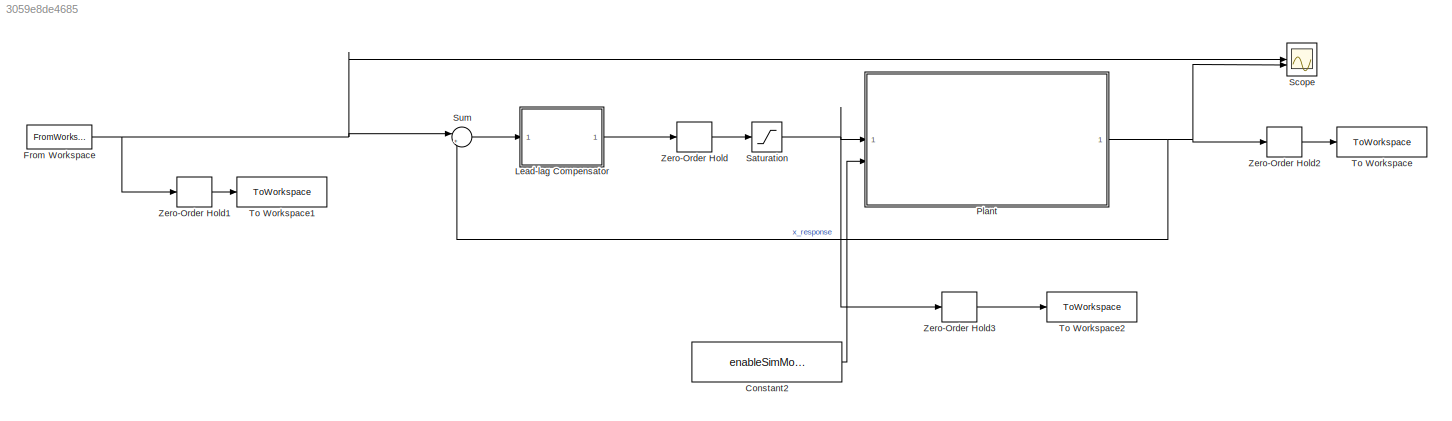
MODEL slx_3059e8de4685
KIND model
CONFIG AbsTol = auto
CONFIG EnableMultiTasking = off
CONFIG FixedStep = auto
CONFIG MaxStep = auto
CONFIG MinStep = auto
CONFIG RelTol = 1e-3
CONFIG SampleTimeConstraint = Unconstrained
CONFIG SolverName = VariableStepAuto
CONFIG StartTime = 0
CONFIG StopTime = 1.712
BLOCK [Constant] Constant2
  Value = enableSimModelFriction
BLOCK [FromWorkspace] From Workspace
  VariableName = xd
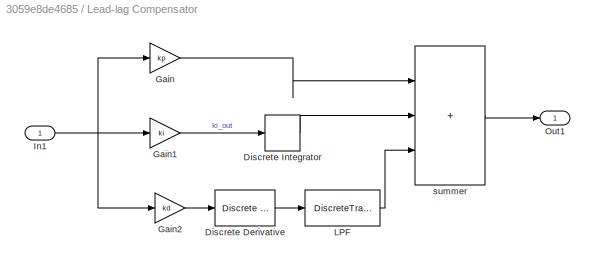
BLOCK [SubSystem] Lead-lag Compensator
BLOCK [Reference] Lead-lag Compensator/Discrete Derivative  REF=simulink/Discrete/Discrete Derivative
  SourceBlock = simulink/Discrete/Discrete Derivative
  SourceType = Discrete Derivative
BLOCK [DiscreteIntegrator] Lead-lag Compensator/Discrete Integrator
  ICPrevOutput = DiscIntNeverNeededParam
  ICPrevScaledInput = DiscIntNeverNeededParam
  InitialConditionSetting = Auto
  SampleTime = Ts
BLOCK [Gain] Lead-lag Compensator/Gain
  Gain = kp
BLOCK [Gain] Lead-lag Compensator/Gain1
  Gain = ki
BLOCK [Gain] Lead-lag Compensator/Gain2
  Gain = kd
BLOCK [Inport] Lead-lag Compensator/In1
BLOCK [DiscreteTransferFcn] Lead-lag Compensator/LPF
  Denominator = [1 -ad]
  InputPortMap = u0
  Numerator = [(1-ad) 0]
BLOCK [Outport] Lead-lag Compensator/Out1
BLOCK [Sum] Lead-lag Compensator/summer
  IconShape = rectangular
  Inputs = |+++
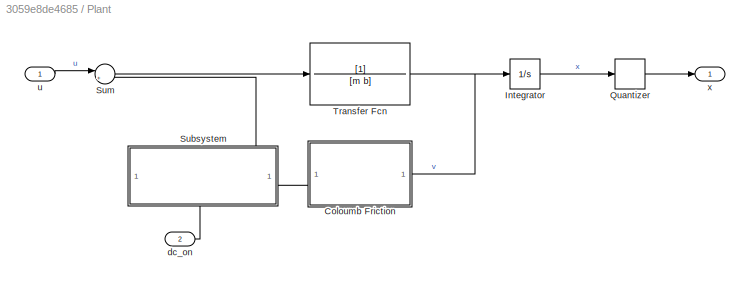
BLOCK [SubSystem] Plant
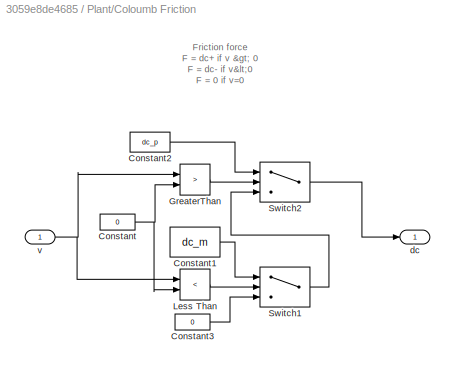
BLOCK [SubSystem] Plant/Coloumb Friction
  PortSchema = {"entries":[{"content":{"sides":[{"content":{"connectorIds":["Out1"]},"type":"ConnectorPlacement.EquallySpacedRectSide","uuid":"ff12b2c0-96a7-455e-a8b4-07c6e260c366"},{"content":{"connectorIds":["In1"],"side":"RIGHT"},"type":"ConnectorPlacement.EquallySpacedRectSide","uuid":"07b26d63-6ebc-42e8-853f-da6a99fdc545"},{"content":{"connectorIds":[],"side":"TOP"},"type":"ConnectorPlacement.EquallySpacedR...<+384ch>
BLOCK [Constant] Plant/Coloumb Friction/Constant
  Value = 0
BLOCK [Constant] Plant/Coloumb Friction/Constant1
  Value = dc_m
BLOCK [Constant] Plant/Coloumb Friction/Constant2
  Value = dc_p
BLOCK [Constant] Plant/Coloumb Friction/Constant3
  Value = 0
BLOCK [RelationalOperator] Plant/Coloumb Friction/GreaterThan
  InputSameDT = off
  Operator = >
  OutDataTypeStr = boolean
  RndMeth = Simplest
BLOCK [RelationalOperator] Plant/Coloumb Friction/Less Than
  InputSameDT = off
  Operator = <
  OutDataTypeStr = boolean
  RndMeth = Simplest
BLOCK [Switch] Plant/Coloumb Friction/Switch1
  Criteria = u2 > Threshold
  InputSameDT = off
  SaturateOnIntegerOverflow = off
BLOCK [Switch] Plant/Coloumb Friction/Switch2
  Criteria = u2 > Threshold
  InputSameDT = off
  SaturateOnIntegerOverflow = off
BLOCK [Outport] Plant/Coloumb Friction/dc
BLOCK [Inport] Plant/Coloumb Friction/v
BLOCK [Integrator] Plant/Integrator
BLOCK [Quantizer] Plant/Quantizer
  QuantizationInterval = delta_x
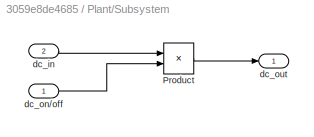
BLOCK [SubSystem] Plant/Subsystem
  PortSchema = {"entries":[{"content":{"sides":[{"content":{"connectorIds":["Out1"]},"type":"ConnectorPlacement.EquallySpacedRectSide","uuid":"ff12b2c0-96a7-455e-a8b4-07c6e260c366"},{"content":{"connectorIds":["In2"],"side":"RIGHT"},"type":"ConnectorPlacement.EquallySpacedRectSide","uuid":"07b26d63-6ebc-42e8-853f-da6a99fdc545"},{"content":{"connectorIds":[],"side":"TOP"},"type":"ConnectorPlacement.EquallySpacedR...<+389ch>
BLOCK [Product] Plant/Subsystem/Product
BLOCK [Inport] Plant/Subsystem/dc_in
  Port = 2
BLOCK [Inport] Plant/Subsystem/dc_on//off
BLOCK [Outport] Plant/Subsystem/dc_out
BLOCK [Sum] Plant/Sum
  Inputs = |+-
BLOCK [TransferFcn] Plant/Transfer Fcn
  Denominator = [m b]
BLOCK [Inport] Plant/dc_on
  Port = 2
BLOCK [Inport] Plant/u
BLOCK [Outport] Plant/x
BLOCK [Saturate] Saturation
  LowerLimit = -3.5
  UpperLimit = 3.5
BLOCK [Scope] Scope
  Floating = off
  NumInputPorts = 2
  ScopeSpecificationString = Simulink.scopes.TimeScopeBlockCfg('CurrentConfiguration', extmgr.ConfigurationSet(extmgr.Configuration('Core','General UI',true),extmgr.Configuration('Core','Source UI',true),extmgr.Configuration('Sources','WiredSimulink',true),extmgr.Configuration('Visuals','Time Domain',true,'SerializedDisplays',{struct('MinYLimReal','-6.25','MaxYLimReal','56.25','YLabelReal','','MinYLimMag','0.00000','MaxYLimMa...<+1366ch>
BLOCK [Sum] Sum
  Inputs = |+-
BLOCK [ToWorkspace] To Workspace
  FixptAsFi = on
  MaxDataPoints = inf
  SampleTime = -1
  SaveFormat = Structure With Time
  VariableName = x_resp
BLOCK [ToWorkspace] To Workspace1
  FixptAsFi = on
  MaxDataPoints = inf
  SampleTime = -1
  SaveFormat = Structure With Time
  VariableName = xd_in
BLOCK [ToWorkspace] To Workspace2
  FixptAsFi = on
  MaxDataPoints = inf
  SampleTime = -1
  SaveFormat = Structure With Time
  VariableName = u_in
BLOCK [ZeroOrderHold] Zero-Order Hold
  SampleTime = Ts
BLOCK [ZeroOrderHold] Zero-Order Hold1
  SampleTime = Ts
BLOCK [ZeroOrderHold] Zero-Order Hold2
  SampleTime = Ts
BLOCK [ZeroOrderHold] Zero-Order Hold3
  SampleTime = Ts
ANNOTATION Plant/Coloumb Friction: Friction force F = dc+ if v > 0 F = dc- if v<0 F = 0 if v=0
LINE Constant2:1 -> Plant:2
NET From Workspace:1 -> Scope:1, Sum:1, Zero-Order Hold1:1
LINE Lead-lag Compensator/Discrete Derivative:1 -> Lead-lag Compensator/LPF:1
LINE Lead-lag Compensator/Discrete Integrator:1 -> Lead-lag Compensator/summer:2
LINE Lead-lag Compensator/Gain1:1 -> Lead-lag Compensator/Discrete Integrator:1
LINE Lead-lag Compensator/Gain2:1 -> Lead-lag Compensator/Discrete Derivative:1
LINE Lead-lag Compensator/Gain:1 -> Lead-lag Compensator/summer:1
NET Lead-lag Compensator/In1:1 -> Lead-lag Compensator/Gain1:1, Lead-lag Compensator/Gain2:1, Lead-lag Compensator/Gain:1
LINE Lead-lag Compensator/LPF:1 -> Lead-lag Compensator/summer:3
LINE Lead-lag Compensator/summer:1 -> Lead-lag Compensator/Out1:1
LINE Lead-lag Compensator:1 -> Zero-Order Hold:1
LINE Plant/Coloumb Friction/Constant1:1 -> Plant/Coloumb Friction/Switch1:1
LINE Plant/Coloumb Friction/Constant2:1 -> Plant/Coloumb Friction/Switch2:1
LINE Plant/Coloumb Friction/Constant3:1 -> Plant/Coloumb Friction/Switch1:3
NET Plant/Coloumb Friction/Constant:1 -> Plant/Coloumb Friction/GreaterThan:2, Plant/Coloumb Friction/Less Than:2
LINE Plant/Coloumb Friction/GreaterThan:1 -> Plant/Coloumb Friction/Switch2:2
LINE Plant/Coloumb Friction/Less Than:1 -> Plant/Coloumb Friction/Switch1:2
LINE Plant/Coloumb Friction/Switch1:1 -> Plant/Coloumb Friction/Switch2:3
LINE Plant/Coloumb Friction/Switch2:1 -> Plant/Coloumb Friction/dc:1
NET Plant/Coloumb Friction/v:1 -> Plant/Coloumb Friction/GreaterThan:1, Plant/Coloumb Friction/Less Than:1
LINE Plant/Coloumb Friction:1 -> Plant/Subsystem:2
LINE Plant/Integrator:1 -> Plant/Quantizer:1
LINE Plant/Quantizer:1 -> Plant/x:1
LINE Plant/Subsystem/Product:1 -> Plant/Subsystem/dc_out:1
LINE Plant/Subsystem/dc_in:1 -> Plant/Subsystem/Product:1
LINE Plant/Subsystem/dc_on//off:1 -> Plant/Subsystem/Product:2
LINE Plant/Subsystem:1 -> Plant/Sum:2
LINE Plant/Sum:1 -> Plant/Transfer Fcn:1
NET Plant/Transfer Fcn:1 -> Plant/Coloumb Friction:1, Plant/Integrator:1
LINE Plant/dc_on:1 -> Plant/Subsystem:1
LINE Plant/u:1 -> Plant/Sum:1
NET Plant:1 -> Scope:2, Sum:2, Zero-Order Hold2:1
NET Saturation:1 -> Plant:1, Zero-Order Hold3:1
LINE Sum:1 -> Lead-lag Compensator:1
LINE Zero-Order Hold1:1 -> To Workspace1:1
LINE Zero-Order Hold2:1 -> To Workspace:1
LINE Zero-Order Hold3:1 -> To Workspace2:1
LINE Zero-Order Hold:1 -> Saturation:1
note: NET lines group one-source signal fan-out (src -> all destinations, sorted); 1:1 wires keep LINE
